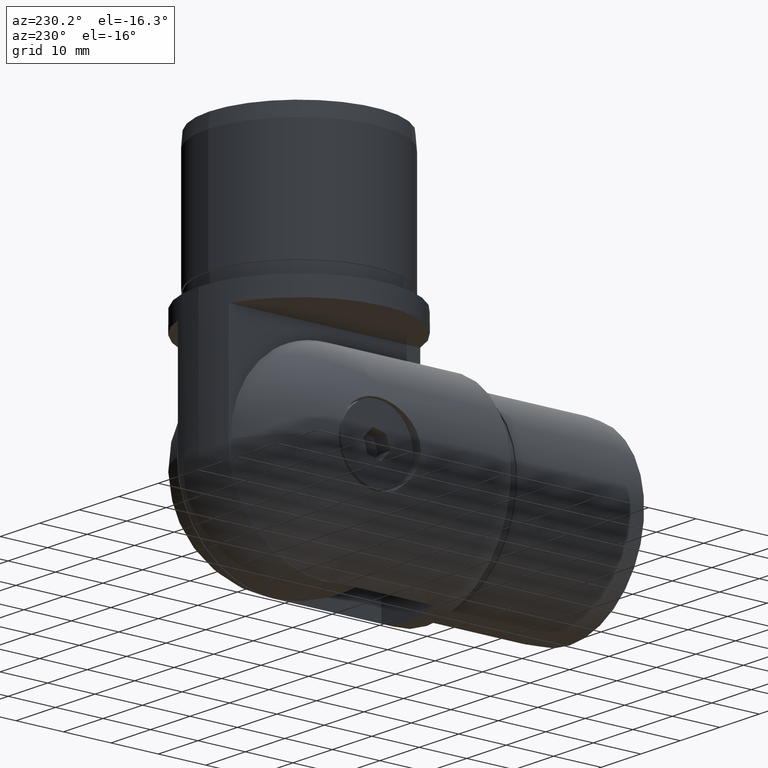
[diagram: clean part render]
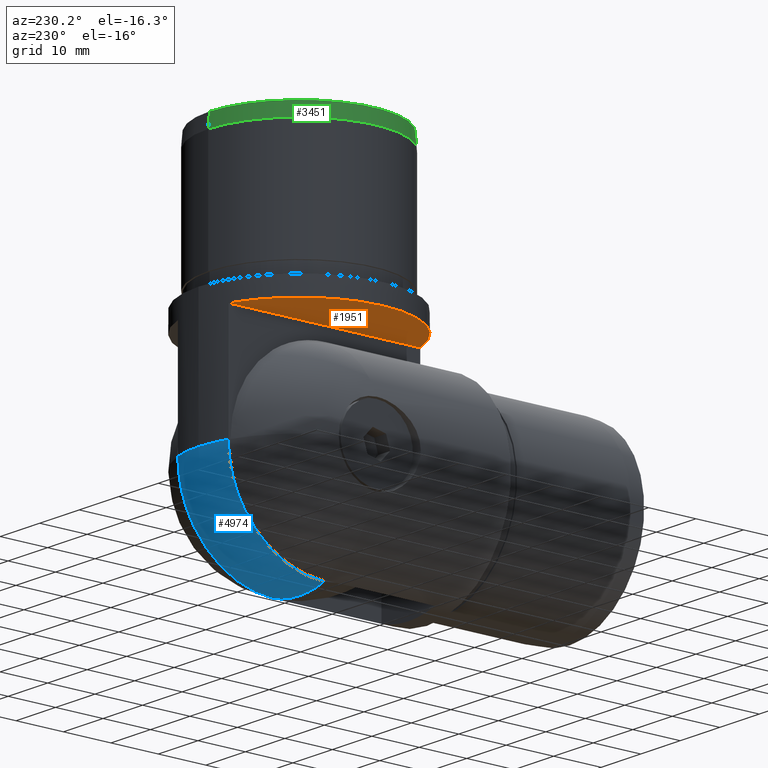
[diagram: same view with three faces highlighted in distinct colors, each labeled with its STEP entity id]
A machine part, auxiliary view with three faces highlighted in distinct colors.
Their STEP definitions:

[orange] entity #1951 — the highlighted planar face has unit normal (0, -0, 1).
#229 = DIRECTION ( 'NONE',  ( 2.556032959136840297E-22, -3.642919299551299212E-17, 1.000000000000000000 ) ) ;
#370 = PLANE ( 'NONE',  #5597 ) ;
#540 = EDGE_CURVE ( 'NONE', #4223, #5874, #2665, .T. ) ;
#1223 = FACE_OUTER_BOUND ( 'NONE', #5776, .T. ) ;
#1767 = VECTOR ( 'NONE', #229, 1000.000000000000000 ) ;
#1836 = ORIENTED_EDGE ( 'NONE', *, *, #2756, .F. ) ;
#1870 = DIRECTION ( 'NONE',  ( 0.0000000000000000000, 3.642919299551299212E-17, -1.000000000000000000 ) ) ;
#1951 = ADVANCED_FACE ( 'NONE', ( #1223 ), #370, .F. ) ;
#2397 = AXIS2_PLACEMENT_3D ( 'NONE', #2832, #3773, #5671 ) ;
#2665 = CIRCLE ( 'NONE', #2397, 21.19999999999999929 ) ;
#2756 = EDGE_CURVE ( 'NONE', #5874, #4223, #6023, .T. ) ;
#2832 = CARTESIAN_POINT ( 'NONE',  ( -1.214306433183764019E-14, 34.00000000000000000, -2.949029909160570167E-14 ) ) ;
#3285 = CARTESIAN_POINT ( 'NONE',  ( -6.400000000000000355, 34.00000000000000000, -38.50000000000070344 ) ) ;
#3371 = CARTESIAN_POINT ( 'NONE',  ( -6.400000000000000355, 34.00000000000000000, 20.21088815465569866 ) ) ;
#3389 = DIRECTION ( 'NONE',  ( 3.604241418723654948E-22, -1.000000000000000000, -3.642919299551299212E-17 ) ) ;
#3773 = DIRECTION ( 'NONE',  ( 3.604241418723654948E-22, -1.000000000000000000, -9.212559860070139570E-44 ) ) ;
#4223 = VERTEX_POINT ( 'NONE', #3371 ) ;
#4824 = CARTESIAN_POINT ( 'NONE',  ( -6.400000000000000355, 34.00000000000000000, -20.21088815465594735 ) ) ;
#5311 = CARTESIAN_POINT ( 'NONE',  ( -6.400000000000000355, 34.00000000000000000, -38.50000000000070344 ) ) ;
#5597 = AXIS2_PLACEMENT_3D ( 'NONE', #3285, #3389, #1870 ) ;
#5671 = DIRECTION ( 'NONE',  ( -2.556032959449357695E-22, 0.0000000000000000000, -1.000000000000000000 ) ) ;
#5776 = EDGE_LOOP ( 'NONE', ( #1836, #5859 ) ) ;
#5859 = ORIENTED_EDGE ( 'NONE', *, *, #540, .F. ) ;
#5874 = VERTEX_POINT ( 'NONE', #4824 ) ;
#6023 = LINE ( 'NONE', #5311, #1767 ) ;

[blue] entity #4974 — the highlighted spherical surface has radius 21.2 mm.
#52 = ORIENTED_EDGE ( 'NONE', *, *, #4614, .F. ) ;
#190 = CARTESIAN_POINT ( 'NONE',  ( 6.400000000000099831, 57.00000000000000000, 20.21088815465574839 ) ) ;
#255 = CARTESIAN_POINT ( 'NONE',  ( 0.0000000000000000000, 57.00000000000000000, 0.0000000000000000000 ) ) ;
#421 = ORIENTED_EDGE ( 'NONE', *, *, #4035, .F. ) ;
#429 = DIRECTION ( 'NONE',  ( 1.000000000000000000, -3.604241418230630048E-22, 0.0000000000000000000 ) ) ;
#437 = CARTESIAN_POINT ( 'NONE',  ( 0.0000000000000000000, 57.00000000000000000, 0.0000000000000000000 ) ) ;
#495 = AXIS2_PLACEMENT_3D ( 'NONE', #3752, #3807, #953 ) ;
#504 = AXIS2_PLACEMENT_3D ( 'NONE', #2462, #2954, #5260 ) ;
#515 = CIRCLE ( 'NONE', #4073, 21.19999999999999929 ) ;
#536 = AXIS2_PLACEMENT_3D ( 'NONE', #3246, #429, #867 ) ;
#690 = EDGE_CURVE ( 'NONE', #3641, #1670, #896, .T. ) ;
#867 = DIRECTION ( 'NONE',  ( 0.0000000000000000000, 0.0000000000000000000, 1.000000000000000000 ) ) ;
#896 = CIRCLE ( 'NONE', #504, 21.20000000000000284 ) ;
#953 = DIRECTION ( 'NONE',  ( 4.291556765597170421E-17, 1.000000000000000000, -3.642919299551299212E-17 ) ) ;
#957 = VERTEX_POINT ( 'NONE', #190 ) ;
#1006 = EDGE_CURVE ( 'NONE', #1473, #1437, #2200, .T. ) ;
#1151 = VERTEX_POINT ( 'NONE', #2842 ) ;
#1277 = DIRECTION ( 'NONE',  ( -1.000000000000000000, 0.0000000000000000000, -1.224649355180312460E-16 ) ) ;
#1437 = VERTEX_POINT ( 'NONE', #1597 ) ;
#1473 = VERTEX_POINT ( 'NONE', #2058 ) ;
#1486 = ORIENTED_EDGE ( 'NONE', *, *, #690, .T. ) ;
#1545 = AXIS2_PLACEMENT_3D ( 'NONE', #437, #2359, #3209 ) ;
#1595 = CIRCLE ( 'NONE', #495, 20.21088815465569510 ) ;
#1597 = CARTESIAN_POINT ( 'NONE',  ( 2.596261498708184883E-15, 57.00000000000000000, 21.19999999999999929 ) ) ;
#1670 = VERTEX_POINT ( 'NONE', #2681 ) ;
#1782 = DIRECTION ( 'NONE',  ( 2.556032959136840297E-22, 0.0000000000000000000, 1.000000000000000000 ) ) ;
#1851 = AXIS2_PLACEMENT_3D ( 'NONE', #3504, #2618, #3550 ) ;
#2057 = EDGE_LOOP ( 'NONE', ( #52, #5167, #5615, #3481, #421, #1486 ) ) ;
#2058 = CARTESIAN_POINT ( 'NONE',  ( -6.400000000000000355, 57.00000000000000000, 20.21088815465574839 ) ) ;
#2157 = AXIS2_PLACEMENT_3D ( 'NONE', #255, #3536, #1782 ) ;
#2166 = CARTESIAN_POINT ( 'NONE',  ( 6.399999999999999467, 77.21088815465567734, 7.362679810577685991E-16 ) ) ;
#2200 = CIRCLE ( 'NONE', #2157, 21.19999999999999929 ) ;
#2359 = DIRECTION ( 'NONE',  ( -3.604241418723654948E-22, 1.000000000000000000, 9.212559858943779779E-44 ) ) ;
#2462 = CARTESIAN_POINT ( 'NONE',  ( 0.0000000000000000000, 57.00000000000000000, 0.0000000000000000000 ) ) ;
#2618 = DIRECTION ( 'NONE',  ( 2.556032958918984989E-22, 3.642919299551299212E-17, -1.000000000000000000 ) ) ;
#2681 = CARTESIAN_POINT ( 'NONE',  ( 1.298125607096194385E-15, 78.20000000000000284, 7.722988915048754848E-16 ) ) ;
#2842 = CARTESIAN_POINT ( 'NONE',  ( -6.399999999999860023, 77.21088815465569155, -4.750924211870293043E-17 ) ) ;
#2954 = DIRECTION ( 'NONE',  ( -2.556032958918984989E-22, -3.642919299551299212E-17, 1.000000000000000000 ) ) ;
#3209 = DIRECTION ( 'NONE',  ( 2.556032959136840297E-22, 0.0000000000000000000, 1.000000000000000000 ) ) ;
#3246 = CARTESIAN_POINT ( 'NONE',  ( 6.400000000000000355, 57.00000000000000000, 9.714451465470119729E-14 ) ) ;
#3481 = ORIENTED_EDGE ( 'NONE', *, *, #4667, .T. ) ;
#3504 = CARTESIAN_POINT ( 'NONE',  ( 0.0000000000000000000, 57.00000000000000000, 0.0000000000000000000 ) ) ;
#3536 = DIRECTION ( 'NONE',  ( -3.604241418723654948E-22, 1.000000000000000000, 9.212559858943779779E-44 ) ) ;
#3550 = DIRECTION ( 'NONE',  ( 1.000000000000000000, 0.0000000000000000000, 2.556032958918984989E-22 ) ) ;
#3641 = VERTEX_POINT ( 'NONE', #2166 ) ;
#3752 = CARTESIAN_POINT ( 'NONE',  ( -6.399999999999860911, 57.00000000000000000, 0.0000000000000000000 ) ) ;
#3807 = DIRECTION ( 'NONE',  ( -1.000000000000000000, 4.291556765597164258E-17, -2.556032960208880330E-22 ) ) ;
#3926 = CIRCLE ( 'NONE', #1545, 21.19999999999999929 ) ;
#4035 = EDGE_CURVE ( 'NONE', #3641, #957, #4853, .T. ) ;
#4073 = AXIS2_PLACEMENT_3D ( 'NONE', #4150, #5468, #1277 ) ;
#4105 = EDGE_CURVE ( 'NONE', #1473, #1151, #1595, .T. ) ;
#4150 = CARTESIAN_POINT ( 'NONE',  ( 0.0000000000000000000, 57.00000000000000000, 0.0000000000000000000 ) ) ;
#4152 = SPHERICAL_SURFACE ( 'NONE', #1851, 21.19999999999999929 ) ;
#4614 = EDGE_CURVE ( 'NONE', #1151, #1670, #515, .T. ) ;
#4667 = EDGE_CURVE ( 'NONE', #1437, #957, #3926, .T. ) ;
#4853 = CIRCLE ( 'NONE', #536, 20.21088815465569866 ) ;
#4974 = ADVANCED_FACE ( 'NONE', ( #5882 ), #4152, .T. ) ;
#5167 = ORIENTED_EDGE ( 'NONE', *, *, #4105, .F. ) ;
#5260 = DIRECTION ( 'NONE',  ( 0.0000000000000000000, -1.000000000000000000, -3.642919299551299212E-17 ) ) ;
#5468 = DIRECTION ( 'NONE',  ( 1.224649355180312213E-16, 3.642919299551299212E-17, -1.000000000000000000 ) ) ;
#5615 = ORIENTED_EDGE ( 'NONE', *, *, #1006, .T. ) ;
#5882 = FACE_OUTER_BOUND ( 'NONE', #2057, .T. ) ;

[green] entity #3451 — the highlighted conical surface has half-angle 4.764 deg.
#15 = EDGE_CURVE ( 'NONE', #4508, #60, #3016, .T. ) ;
#60 = VERTEX_POINT ( 'NONE', #5532 ) ;
#326 = VERTEX_POINT ( 'NONE', #4454 ) ;
#391 = CARTESIAN_POINT ( 'NONE',  ( 0.0000000000000000000, 0.0000000000000000000, 0.0000000000000000000 ) ) ;
#529 = CARTESIAN_POINT ( 'NONE',  ( 2.329885131888929971E-15, -6.885117476151960768E-16, -18.89999999999999858 ) ) ;
#550 = AXIS2_PLACEMENT_3D ( 'NONE', #3611, #3586, #4036 ) ;
#925 = DIRECTION ( 'NONE',  ( 3.604241418723654948E-22, -1.000000000000000000, -4.529304114821939678E-17 ) ) ;
#1348 = DIRECTION ( 'NONE',  ( -3.604241418723654948E-22, 1.000000000000000000, 3.642919299551299212E-17 ) ) ;
#1388 = ORIENTED_EDGE ( 'NONE', *, *, #2113, .T. ) ;
#1488 = ORIENTED_EDGE ( 'NONE', *, *, #1515, .F. ) ;
#1515 = EDGE_CURVE ( 'NONE', #326, #4508, #3020, .T. ) ;
#1843 = VERTEX_POINT ( 'NONE', #2747 ) ;
#2093 = EDGE_LOOP ( 'NONE', ( #3561, #1488, #1388, #2285 ) ) ;
#2113 = EDGE_CURVE ( 'NONE', #326, #1843, #5071, .T. ) ;
#2188 = DIRECTION ( 'NONE',  ( -3.379524513906068136E-22, 0.9965457582448795648, 0.08304547985373997299 ) ) ;
#2285 = ORIENTED_EDGE ( 'NONE', *, *, #3202, .T. ) ;
#2417 = VECTOR ( 'NONE', #2188, 1000.000000000000227 ) ;
#2420 = FACE_OUTER_BOUND ( 'NONE', #2093, .T. ) ;
#2494 = CIRCLE ( 'NONE', #4885, 19.14999999999999858 ) ;
#2550 = AXIS2_PLACEMENT_3D ( 'NONE', #391, #1348, #3739 ) ;
#2662 = CARTESIAN_POINT ( 'NONE',  ( 2.314577619486219495E-15, 6.885117476151969643E-16, -18.89999999999999858 ) ) ;
#2747 = CARTESIAN_POINT ( 'NONE',  ( 9.255082967232638673E-14, 3.000000000000000000, 19.14999999999999858 ) ) ;
#3016 = LINE ( 'NONE', #2662, #3976 ) ;
#3020 = CIRCLE ( 'NONE', #550, 18.89999999999999858 ) ;
#3202 = EDGE_CURVE ( 'NONE', #1843, #60, #2494, .T. ) ;
#3451 = ADVANCED_FACE ( 'NONE', ( #2420 ), #4489, .T. ) ;
#3561 = ORIENTED_EDGE ( 'NONE', *, *, #15, .F. ) ;
#3586 = DIRECTION ( 'NONE',  ( 3.604241418723654948E-22, -1.000000000000000000, -3.642919299551299212E-17 ) ) ;
#3611 = CARTESIAN_POINT ( 'NONE',  ( 0.0000000000000000000, 0.0000000000000000000, 0.0000000000000000000 ) ) ;
#3739 = DIRECTION ( 'NONE',  ( 2.556032959136840767E-22, -3.642919299551299829E-17, 1.000000000000000000 ) ) ;
#3802 = CARTESIAN_POINT ( 'NONE',  ( 9.020562075079399415E-14, 3.000000000000000000, -5.724587470723458363E-14 ) ) ;
#3976 = VECTOR ( 'NONE', #5508, 1000.000000000000000 ) ;
#4036 = DIRECTION ( 'NONE',  ( -2.556032959136840767E-22, 3.642919299551299829E-17, -1.000000000000000000 ) ) ;
#4067 = CARTESIAN_POINT ( 'NONE',  ( 4.830902292768639070E-21, -6.885117476151969643E-16, 18.89999999999999858 ) ) ;
#4454 = CARTESIAN_POINT ( 'NONE',  ( 4.322216491949279679E-21, 6.885117476151830606E-16, 18.89999999999999858 ) ) ;
#4489 = CONICAL_SURFACE ( 'NONE', #2550, 18.89999999999999858, 0.08314123188844194101 ) ;
#4508 = VERTEX_POINT ( 'NONE', #529 ) ;
#4885 = AXIS2_PLACEMENT_3D ( 'NONE', #3802, #925, #5049 ) ;
#5049 = DIRECTION ( 'NONE',  ( -2.556032959314630996E-22, 4.529304114821950772E-17, -1.000000000000000000 ) ) ;
#5071 = LINE ( 'NONE', #4067, #2417 ) ;
#5508 = DIRECTION ( 'NONE',  ( 1.016975770280579374E-17, 0.9965457582448795648, -0.08304547985374005625 ) ) ;
#5532 = CARTESIAN_POINT ( 'NONE',  ( 9.020561585599088762E-14, 3.000000000000000000, -19.14999999999999858 ) ) ;